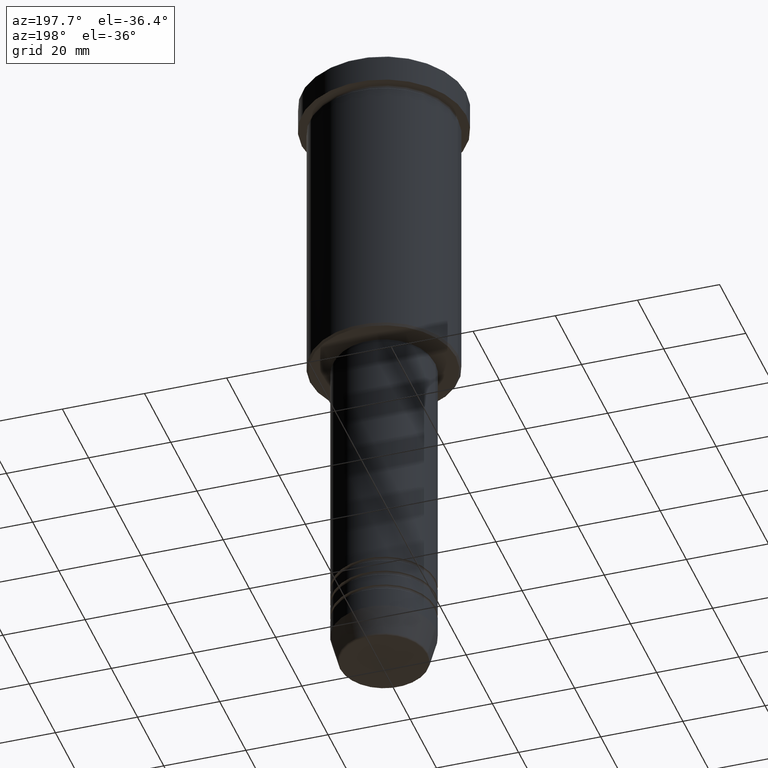
[diagram: clean part render]
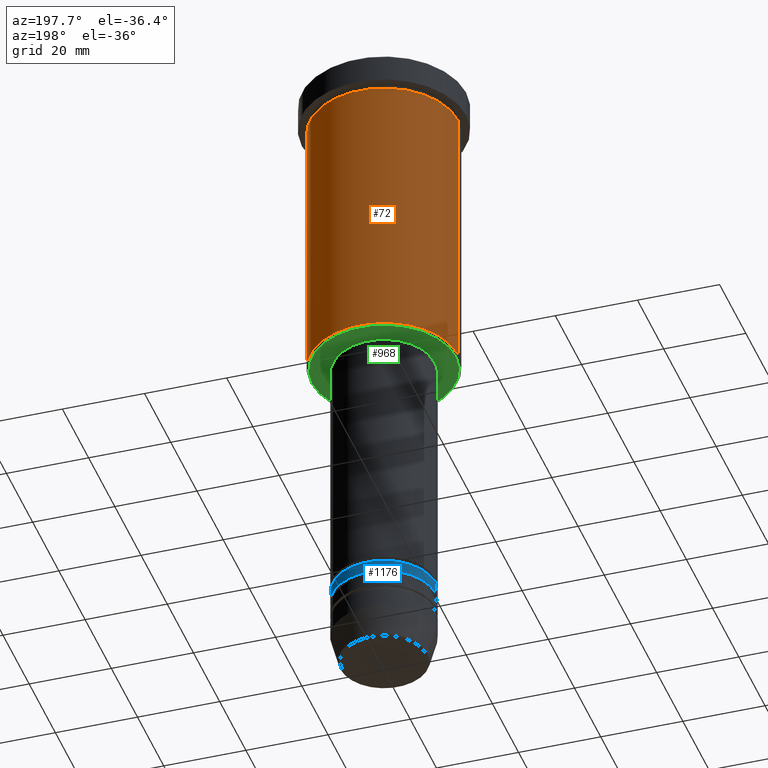
[diagram: same view with three faces highlighted in distinct colors, each labeled with its STEP entity id]
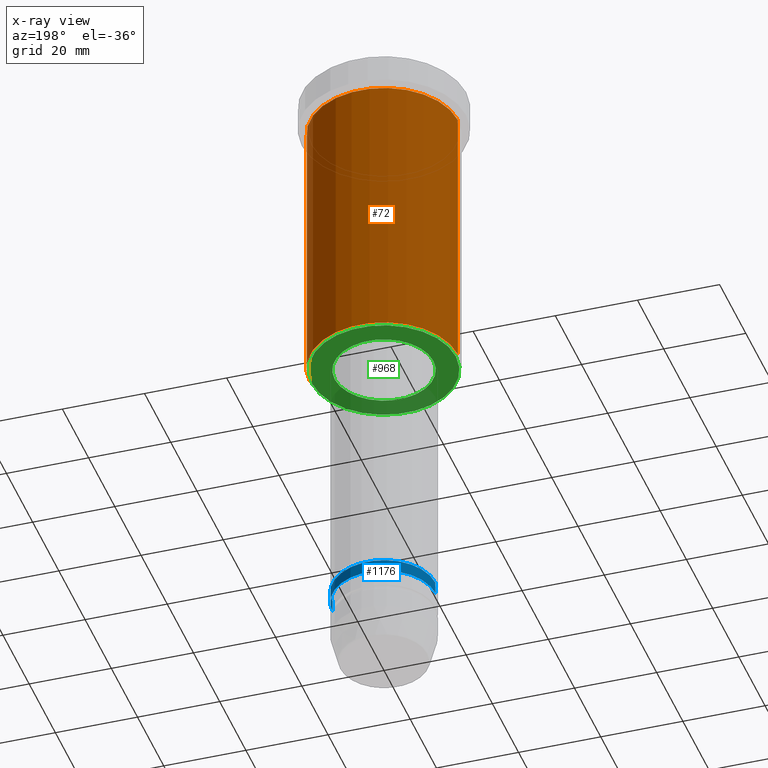
[diagram: x-ray of the same camera — body ghosted, the three highlighted faces saturated]
A machine part, auxiliary view with three faces highlighted in distinct colors.
The next image is the same camera in x-ray (body ghosted, the three faces saturated) — at least one of them is partly hidden behind the body in this view.
Their STEP definitions:

[orange] entity #72 — the highlighted cylindrical surface (partial cylindrical patch) has radius 18 mm, axis along (-0, -0, 1).
#29 = CARTESIAN_POINT ( 'NONE',  ( -18.00000000000000000, 2.204364238465235428E-15, -75.50000000000000000 ) ) ;
#72 = ADVANCED_FACE ( 'NONE', ( #464 ), #818, .T. ) ;
#98 = DIRECTION ( 'NONE',  ( -0.000000000000000000, -0.000000000000000000, 1.000000000000000000 ) ) ;
#132 = DIRECTION ( 'NONE',  ( 1.000000000000000000, 0.000000000000000000, 0.000000000000000000 ) ) ;
#141 = CARTESIAN_POINT ( 'NONE',  ( 18.00000000000000000, 0.000000000000000000, 0.000000000000000000 ) ) ;
#168 = ORIENTED_EDGE ( 'NONE', *, *, #799, .T. ) ;
#177 = VECTOR ( 'NONE', #329, 1000.000000000000000 ) ;
#237 = EDGE_CURVE ( 'NONE', #798, #668, #478, .T. ) ;
#238 = LINE ( 'NONE', #1137, #177 ) ;
#245 = AXIS2_PLACEMENT_3D ( 'NONE', #568, #288, #647 ) ;
#288 = DIRECTION ( 'NONE',  ( -0.000000000000000000, -0.000000000000000000, 1.000000000000000000 ) ) ;
#314 = AXIS2_PLACEMENT_3D ( 'NONE', #485, #851, #132 ) ;
#329 = DIRECTION ( 'NONE',  ( -0.000000000000000000, -0.000000000000000000, 1.000000000000000000 ) ) ;
#330 = VECTOR ( 'NONE', #1052, 1000.000000000000000 ) ;
#370 = CARTESIAN_POINT ( 'NONE',  ( 0.000000000000000000, 0.000000000000000000, 0.000000000000000000 ) ) ;
#413 = CARTESIAN_POINT ( 'NONE',  ( 18.00000000000000000, 0.000000000000000000, -75.50000000000000000 ) ) ;
#421 = CARTESIAN_POINT ( 'NONE',  ( 18.00000000000000000, 0.000000000000000000, -7.999999999999996447 ) ) ;
#424 = AXIS2_PLACEMENT_3D ( 'NONE', #370, #98, #632 ) ;
#464 = FACE_OUTER_BOUND ( 'NONE', #784, .T. ) ;
#478 = CIRCLE ( 'NONE', #245, 18.00000000000000000 ) ;
#485 = CARTESIAN_POINT ( 'NONE',  ( 0.000000000000000000, 0.000000000000000000, -7.999999999999996447 ) ) ;
#568 = CARTESIAN_POINT ( 'NONE',  ( 0.000000000000000000, 0.000000000000000000, -75.50000000000000000 ) ) ;
#600 = ORIENTED_EDGE ( 'NONE', *, *, #690, .F. ) ;
#632 = DIRECTION ( 'NONE',  ( 1.000000000000000000, 0.000000000000000000, 0.000000000000000000 ) ) ;
#647 = DIRECTION ( 'NONE',  ( -1.000000000000000000, 0.000000000000000000, 0.000000000000000000 ) ) ;
#668 = VERTEX_POINT ( 'NONE', #29 ) ;
#690 = EDGE_CURVE ( 'NONE', #798, #891, #933, .T. ) ;
#726 = EDGE_CURVE ( 'NONE', #891, #1133, #808, .T. ) ;
#764 = CARTESIAN_POINT ( 'NONE',  ( -18.00000000000000000, 2.204364238465235428E-15, -7.999999999999996447 ) ) ;
#784 = EDGE_LOOP ( 'NONE', ( #889, #168, #899, #600 ) ) ;
#798 = VERTEX_POINT ( 'NONE', #413 ) ;
#799 = EDGE_CURVE ( 'NONE', #668, #1133, #238, .T. ) ;
#808 = CIRCLE ( 'NONE', #314, 18.00000000000000000 ) ;
#818 = CYLINDRICAL_SURFACE ( 'NONE', #424, 18.00000000000000000 ) ;
#851 = DIRECTION ( 'NONE',  ( -0.000000000000000000, -0.000000000000000000, 1.000000000000000000 ) ) ;
#889 = ORIENTED_EDGE ( 'NONE', *, *, #237, .T. ) ;
#891 = VERTEX_POINT ( 'NONE', #421 ) ;
#899 = ORIENTED_EDGE ( 'NONE', *, *, #726, .F. ) ;
#933 = LINE ( 'NONE', #141, #330 ) ;
#1052 = DIRECTION ( 'NONE',  ( -0.000000000000000000, -0.000000000000000000, 1.000000000000000000 ) ) ;
#1133 = VERTEX_POINT ( 'NONE', #764 ) ;
#1137 = CARTESIAN_POINT ( 'NONE',  ( -18.00000000000000000, 2.204364238465235428E-15, 0.000000000000000000 ) ) ;

[blue] entity #1176 — the highlighted cylindrical surface (partial cylindrical patch) has radius 12.5 mm, axis along (-0, -0, 1).
#14 = AXIS2_PLACEMENT_3D ( 'NONE', #570, #1019, #916 ) ;
#31 = EDGE_LOOP ( 'NONE', ( #753, #843, #151, #1008 ) ) ;
#51 = DIRECTION ( 'NONE',  ( -0.000000000000000000, -0.000000000000000000, 1.000000000000000000 ) ) ;
#126 = DIRECTION ( 'NONE',  ( -0.000000000000000000, -0.000000000000000000, 1.000000000000000000 ) ) ;
#151 = ORIENTED_EDGE ( 'NONE', *, *, #291, .F. ) ;
#205 = VERTEX_POINT ( 'NONE', #1160 ) ;
#259 = AXIS2_PLACEMENT_3D ( 'NONE', #384, #922, #1002 ) ;
#291 = EDGE_CURVE ( 'NONE', #205, #886, #315, .T. ) ;
#315 = CIRCLE ( 'NONE', #956, 12.50000000000000000 ) ;
#356 = CIRCLE ( 'NONE', #14, 12.50000000000000355 ) ;
#384 = CARTESIAN_POINT ( 'NONE',  ( 0.000000000000000000, 0.000000000000000000, 0.000000000000000000 ) ) ;
#416 = EDGE_CURVE ( 'NONE', #582, #886, #1134, .T. ) ;
#473 = DIRECTION ( 'NONE',  ( 1.000000000000000000, 0.000000000000000000, 0.000000000000000000 ) ) ;
#570 = CARTESIAN_POINT ( 'NONE',  ( 0.000000000000000000, 0.000000000000000000, -143.0000000000000000 ) ) ;
#582 = VERTEX_POINT ( 'NONE', #601 ) ;
#601 = CARTESIAN_POINT ( 'NONE',  ( -12.50000000000000533, 1.530808498934192113E-15, -143.0000000000000000 ) ) ;
#611 = CARTESIAN_POINT ( 'NONE',  ( 12.50000000000000355, 0.000000000000000000, -143.0000000000000000 ) ) ;
#616 = VERTEX_POINT ( 'NONE', #611 ) ;
#660 = LINE ( 'NONE', #939, #913 ) ;
#674 = CARTESIAN_POINT ( 'NONE',  ( -12.50000000000000178, 1.530808498934191719E-15, 0.000000000000000000 ) ) ;
#753 = ORIENTED_EDGE ( 'NONE', *, *, #971, .T. ) ;
#770 = DIRECTION ( 'NONE',  ( -0.000000000000000000, -0.000000000000000000, 1.000000000000000000 ) ) ;
#789 = EDGE_CURVE ( 'NONE', #616, #205, #660, .T. ) ;
#843 = ORIENTED_EDGE ( 'NONE', *, *, #416, .T. ) ;
#886 = VERTEX_POINT ( 'NONE', #1050 ) ;
#913 = VECTOR ( 'NONE', #51, 1000.000000000000000 ) ;
#914 = CYLINDRICAL_SURFACE ( 'NONE', #259, 12.50000000000000178 ) ;
#916 = DIRECTION ( 'NONE',  ( 1.000000000000000000, 0.000000000000000000, 0.000000000000000000 ) ) ;
#919 = VECTOR ( 'NONE', #770, 1000.000000000000000 ) ;
#922 = DIRECTION ( 'NONE',  ( -0.000000000000000000, -0.000000000000000000, 1.000000000000000000 ) ) ;
#939 = CARTESIAN_POINT ( 'NONE',  ( 12.50000000000000178, 0.000000000000000000, 0.000000000000000000 ) ) ;
#956 = AXIS2_PLACEMENT_3D ( 'NONE', #1100, #126, #473 ) ;
#971 = EDGE_CURVE ( 'NONE', #616, #582, #356, .T. ) ;
#1002 = DIRECTION ( 'NONE',  ( 1.000000000000000000, 0.000000000000000000, 0.000000000000000000 ) ) ;
#1008 = ORIENTED_EDGE ( 'NONE', *, *, #789, .F. ) ;
#1019 = DIRECTION ( 'NONE',  ( -0.000000000000000000, -0.000000000000000000, 1.000000000000000000 ) ) ;
#1050 = CARTESIAN_POINT ( 'NONE',  ( -12.50000000000000000, 1.530808498934191719E-15, -139.9999999999999716 ) ) ;
#1100 = CARTESIAN_POINT ( 'NONE',  ( 0.000000000000000000, 0.000000000000000000, -139.9999999999999716 ) ) ;
#1121 = FACE_OUTER_BOUND ( 'NONE', #31, .T. ) ;
#1134 = LINE ( 'NONE', #674, #919 ) ;
#1160 = CARTESIAN_POINT ( 'NONE',  ( 12.50000000000000000, 0.000000000000000000, -139.9999999999999716 ) ) ;
#1176 = ADVANCED_FACE ( 'NONE', ( #1121 ), #914, .T. ) ;

[green] entity #968 — the highlighted planar face has unit normal (0, 0, -1).
#5 = ORIENTED_EDGE ( 'NONE', *, *, #1007, .T. ) ;
#48 = DIRECTION ( 'NONE',  ( -1.000000000000000000, 0.000000000000000000, -0.000000000000000000 ) ) ;
#77 = CIRCLE ( 'NONE', #981, 17.49999999999998934 ) ;
#119 = DIRECTION ( 'NONE',  ( -0.000000000000000000, -0.000000000000000000, 1.000000000000000000 ) ) ;
#127 = CARTESIAN_POINT ( 'NONE',  ( 0.000000000000000000, 0.000000000000000000, -76.00000000000001421 ) ) ;
#135 = CARTESIAN_POINT ( 'NONE',  ( 0.000000000000000000, 0.000000000000000000, -76.00000000000001421 ) ) ;
#138 = CIRCLE ( 'NONE', #477, 17.49999999999998934 ) ;
#140 = PLANE ( 'NONE',  #375 ) ;
#149 = FACE_BOUND ( 'NONE', #439, .T. ) ;
#173 = DIRECTION ( 'NONE',  ( -1.000000000000000000, 0.000000000000000000, 0.000000000000000000 ) ) ;
#181 = EDGE_CURVE ( 'NONE', #1087, #481, #738, .T. ) ;
#256 = CARTESIAN_POINT ( 'NONE',  ( 12.00000000000000000, 0.000000000000000000, -76.00000000000001421 ) ) ;
#364 = CARTESIAN_POINT ( 'NONE',  ( 0.000000000000000000, 0.000000000000000000, -76.00000000000001421 ) ) ;
#375 = AXIS2_PLACEMENT_3D ( 'NONE', #585, #504, #48 ) ;
#439 = EDGE_LOOP ( 'NONE', ( #1044, #1153 ) ) ;
#469 = EDGE_LOOP ( 'NONE', ( #944, #5 ) ) ;
#477 = AXIS2_PLACEMENT_3D ( 'NONE', #707, #959, #173 ) ;
#481 = VERTEX_POINT ( 'NONE', #952 ) ;
#488 = VERTEX_POINT ( 'NONE', #511 ) ;
#498 = CIRCLE ( 'NONE', #955, 12.00000000000000000 ) ;
#504 = DIRECTION ( 'NONE',  ( 0.000000000000000000, 0.000000000000000000, -1.000000000000000000 ) ) ;
#511 = CARTESIAN_POINT ( 'NONE',  ( -17.49999999999998934, 2.173748068486550852E-15, -76.00000000000001421 ) ) ;
#585 = CARTESIAN_POINT ( 'NONE',  ( 0.000000000000000000, 18.00000000000000000, -76.00000000000001421 ) ) ;
#653 = DIRECTION ( 'NONE',  ( 1.000000000000000000, 0.000000000000000000, 0.000000000000000000 ) ) ;
#670 = CARTESIAN_POINT ( 'NONE',  ( 17.49999999999998934, 0.000000000000000000, -76.00000000000001421 ) ) ;
#707 = CARTESIAN_POINT ( 'NONE',  ( 0.000000000000000000, 0.000000000000000000, -76.00000000000001421 ) ) ;
#709 = VERTEX_POINT ( 'NONE', #670 ) ;
#722 = DIRECTION ( 'NONE',  ( 1.000000000000000000, 0.000000000000000000, 0.000000000000000000 ) ) ;
#738 = CIRCLE ( 'NONE', #756, 12.00000000000000000 ) ;
#752 = DIRECTION ( 'NONE',  ( 0.000000000000000000, 0.000000000000000000, -1.000000000000000000 ) ) ;
#756 = AXIS2_PLACEMENT_3D ( 'NONE', #364, #1081, #722 ) ;
#761 = FACE_OUTER_BOUND ( 'NONE', #469, .T. ) ;
#910 = EDGE_CURVE ( 'NONE', #709, #488, #77, .T. ) ;
#944 = ORIENTED_EDGE ( 'NONE', *, *, #910, .T. ) ;
#952 = CARTESIAN_POINT ( 'NONE',  ( -12.00000000000000000, 1.469576158976823947E-15, -76.00000000000001421 ) ) ;
#955 = AXIS2_PLACEMENT_3D ( 'NONE', #127, #119, #653 ) ;
#959 = DIRECTION ( 'NONE',  ( 0.000000000000000000, 0.000000000000000000, -1.000000000000000000 ) ) ;
#968 = ADVANCED_FACE ( 'NONE', ( #761, #149 ), #140, .T. ) ;
#981 = AXIS2_PLACEMENT_3D ( 'NONE', #135, #752, #1117 ) ;
#1007 = EDGE_CURVE ( 'NONE', #488, #709, #138, .T. ) ;
#1044 = ORIENTED_EDGE ( 'NONE', *, *, #181, .T. ) ;
#1081 = DIRECTION ( 'NONE',  ( -0.000000000000000000, -0.000000000000000000, 1.000000000000000000 ) ) ;
#1087 = VERTEX_POINT ( 'NONE', #256 ) ;
#1117 = DIRECTION ( 'NONE',  ( -1.000000000000000000, 0.000000000000000000, 0.000000000000000000 ) ) ;
#1153 = ORIENTED_EDGE ( 'NONE', *, *, #1159, .T. ) ;
#1159 = EDGE_CURVE ( 'NONE', #481, #1087, #498, .T. ) ;